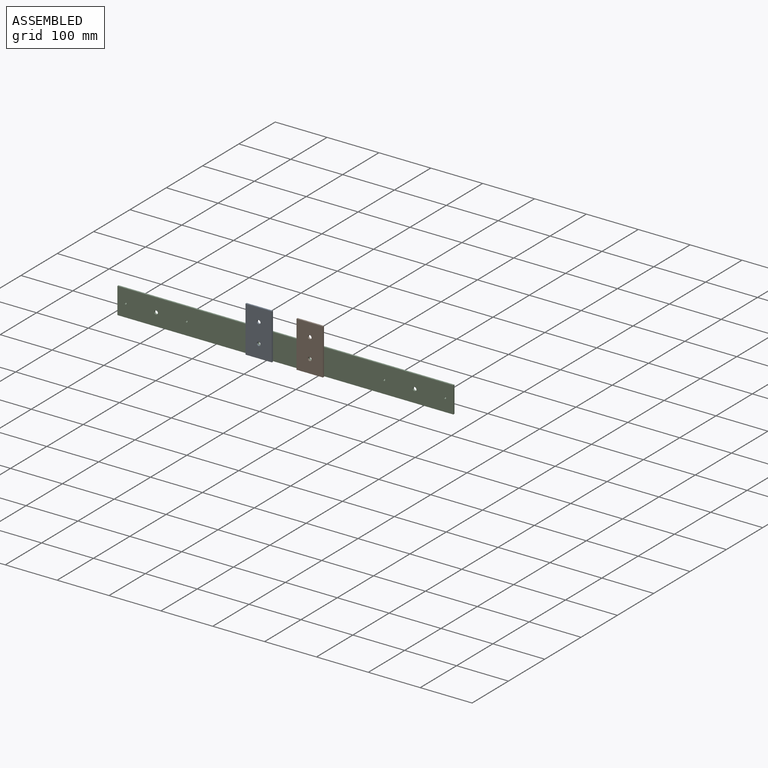
[diagram: assembled view]
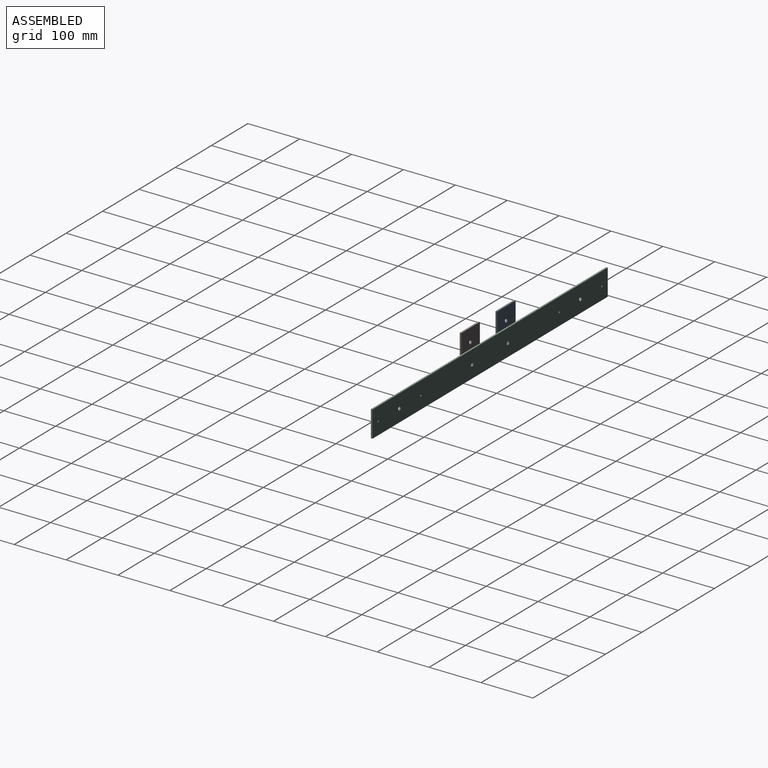
[diagram: assembled view, second angle]
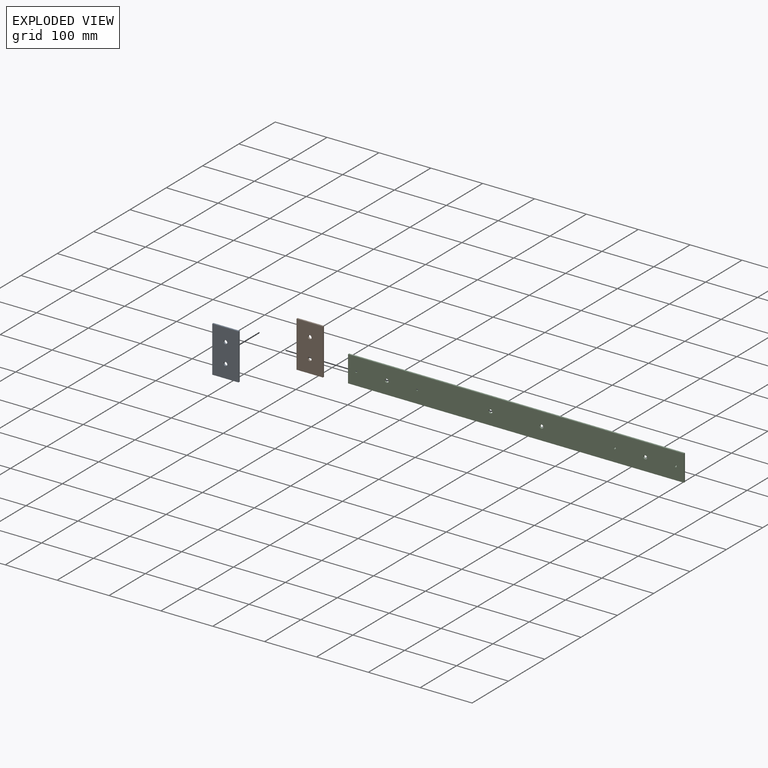
[diagram: exploded view]
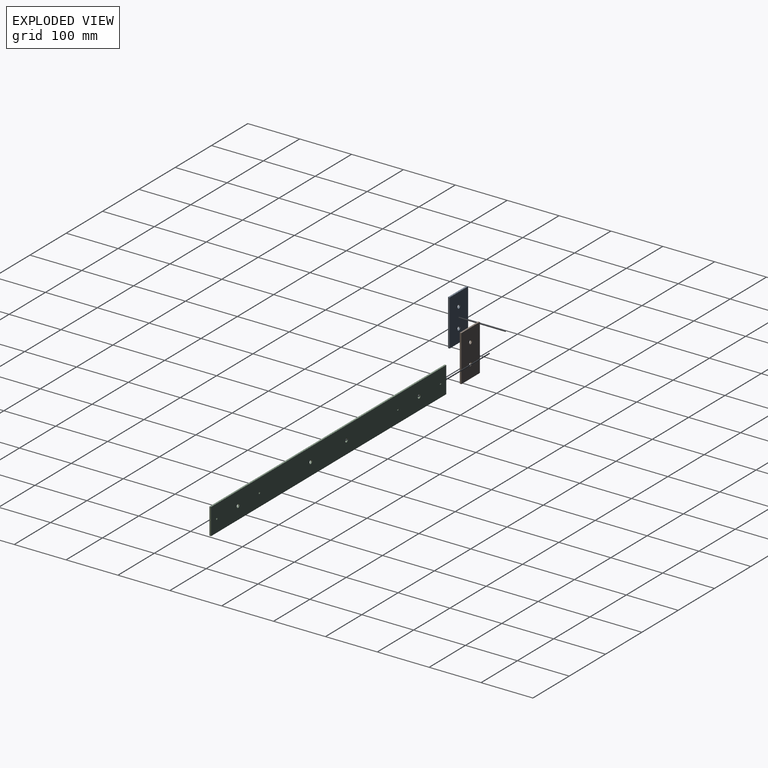
[diagram: exploded view, second angle]
ASSEMBLY  parts=3 mates=2
PART A: 8 faces, bbox 50.8x3.2x88.9 mm
  f0: plane 88.9x3.18mm, normal (-1,0,0), area 282.3mm2, adj f1,f4,f6,f7
  f1: plane 50.8x3.18mm, normal (0,0,-1), area 161.3mm2, adj f0,f2,f6,f7
  f2: plane 88.9x3.18mm, normal (1,0,0), area 282.3mm2, adj f1,f4,f6,f7
  f3: cylinder r=3.57mm len=7.14mm, axis (0,1,0), area 71.2mm2, adj f6,f7
  f4: plane 50.8x3.18mm, normal (0,0,1), area 161.3mm2, adj f0,f2,f6,f7
  f5: cylinder r=3.57mm len=7.14mm, axis (0,1,0), area 71.2mm2, adj f6,f7
  f6: plane 88.9x50.8mm, normal (0,-1,0), area 4436.1mm2, adj f0,f1,f2,f3,f4,f5
  f7: plane 88.9x50.8mm, normal (0,1,0), area 4436.1mm2, adj f0,f1,f2,f3,f4,f5
PART B: same geometry as A
PART C: 14 faces, bbox 647.7x3.2x50.8 mm
  f0: plane 647.7x3.18mm, normal (0,0,1), area 2056.4mm2, adj f1,f11,f12,f13
  f1: plane 50.8x3.18mm, normal (-1,0,0), area 161.3mm2, adj f0,f2,f12,f13
  f2: plane 647.7x3.18mm, normal (0,0,-1), area 2056.4mm2, adj f1,f11,f12,f13
  f3: cylinder r=3.57mm len=7.14mm, axis (0,1,0), area 71.3mm2, adj f12,f13
  f4: cylinder r=1.78mm len=3.56mm, axis (0,1,0), area 35.5mm2, adj f12,f13
  f5: cylinder r=1.78mm len=3.56mm, axis (0,1,0), area 35.5mm2, adj f12,f13
  f6: cylinder r=1.78mm len=3.56mm, axis (0,1,0), area 35.5mm2, adj f12,f13
  f7: cylinder r=3.57mm len=7.14mm, axis (0,1,0), area 71.2mm2, adj f12,f13
  f8: cylinder r=3.57mm len=7.14mm, axis (0,1,0), area 71.2mm2, adj f12,f13
  f9: cylinder r=1.78mm len=3.56mm, axis (0,1,0), area 35.5mm2, adj f12,f13
  f10: cylinder r=3.57mm len=7.14mm, axis (0,1,0), area 71.3mm2, adj f12,f13
  f11: plane 50.8x3.18mm, normal (1,0,0), area 161.3mm2, adj f0,f2,f12,f13
  f12: plane 647.7x50.8mm, normal (0,-1,0), area 32703.3mm2, adj f0,f1,f2,f3,f4,f5,f6,f7
  f13: plane 647.7x50.8mm, normal (0,1,0), area 32703.3mm2, adj f0,f1,f2,f3,f4,f5,f6,f7
PLACE A t=(-2.36,-53.02,53.74)mm
PLACE B t=(96.07,-53.02,53.74)mm
PLACE C t=(-129.14,-49.84,34.69)mm
MATE fastened B.f5 <-> C.f10  axis (0,-1,0) through (96.07,-56.19,34.69)mm
MATE fastened A.f5 <-> C.f3  axis (0,-1,0) through (-2.36,-56.19,34.69)mm
